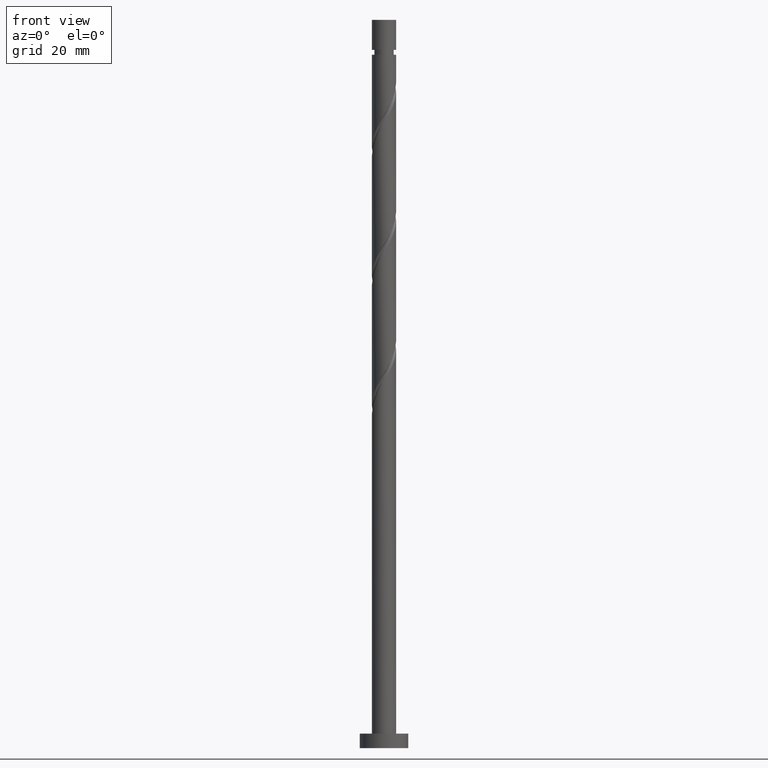
[diagram: clean part render]
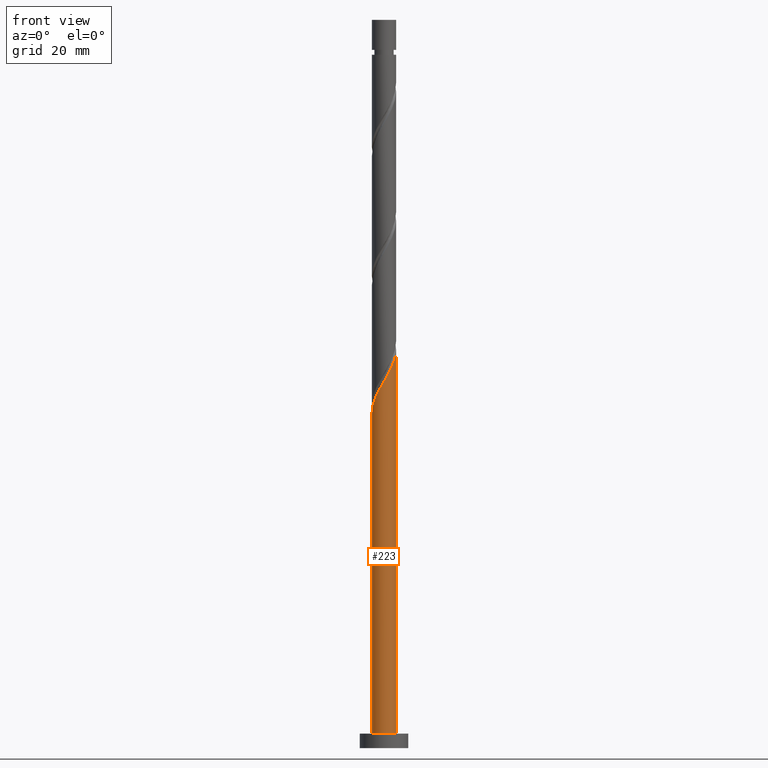
[diagram: same view with one face highlighted and labeled with its STEP entity id]
A machine part, front view. The second image highlights one B-rep face of the part: STEP entity #223.
In plain terms, the highlighted cylindrical surface (edge-blend (fillet) strip) has radius 2.5 mm, axis along (-0, -0, -1).
Its self-contained STEP definition (entity closure, byte-faithful):
#40 = CARTESIAN_POINT ( 'NONE',  ( 1.743088351060510188, -1.792105744758709429, 79.04957667147141365 ) ) ;
#59 = CARTESIAN_POINT ( 'NONE',  ( 2.000754257700509076, -1.541487475360719062, 79.65563727753202272 ) ) ;
#80 = VECTOR ( 'NONE', #1363, 1000.000000000000000 ) ;
#132 = CARTESIAN_POINT ( 'NONE',  ( 2.500000000000000000, 3.061616997868383141E-16, 150.5000000000000000 ) ) ;
#137 = CARTESIAN_POINT ( 'NONE',  ( -2.500000000000003109, -9.280707246519474483E-15, 69.10921310126143169 ) ) ;
#158 = ORIENTED_EDGE ( 'NONE', *, *, #1453, .F. ) ;
#167 = AXIS2_PLACEMENT_3D ( 'NONE', #184, #913, #651 ) ;
#184 = CARTESIAN_POINT ( 'NONE',  ( 0.000000000000000000, 0.000000000000000000, 3.000000000000000000 ) ) ;
#223 = ADVANCED_FACE ( 'NONE', ( #1399 ), #1410, .T. ) ;
#243 = CARTESIAN_POINT ( 'NONE',  ( -2.495863270706177417, -0.1437585960555965436, 69.35260697450169687 ) ) ;
#280 = DIRECTION ( 'NONE',  ( -1.000000000000000000, 0.000000000000000000, 0.000000000000000000 ) ) ;
#286 = CARTESIAN_POINT ( 'NONE',  ( 1.485422444420512189, -2.042724014156700907, 78.44351606541081878 ) ) ;
#306 = CARTESIAN_POINT ( 'NONE',  ( 2.500000000000004441, -0.2863223184628053697, 81.95658648162346083 ) ) ;
#316 = CARTESIAN_POINT ( 'NONE',  ( -1.810534374112179323, -1.761012923450277601, 72.38291000480472803 ) ) ;
#353 = EDGE_CURVE ( 'NONE', #984, #918, #710, .T. ) ;
#407 = CARTESIAN_POINT ( 'NONE',  ( -2.500000000000003553, -9.280707246519474483E-15, 69.10921310126143169 ) ) ;
#449 = CARTESIAN_POINT ( 'NONE',  ( 2.500000000000003109, 2.191174233062213370E-15, 82.44254643459476029 ) ) ;
#518 = CARTESIAN_POINT ( 'NONE',  ( -2.500000000000003553, -0.07193881630955888118, 69.23131110597965687 ) ) ;
#534 = VECTOR ( 'NONE', #1533, 1000.000000000000000 ) ;
#548 = CARTESIAN_POINT ( 'NONE',  ( -0.2129030368922531502, -2.490917962696097110, 75.41321303510777341 ) ) ;
#574 = CARTESIAN_POINT ( 'NONE',  ( 2.353996859965343358, -0.9153687888900183811, 80.86775848965324087 ) ) ;
#613 = EDGE_LOOP ( 'NONE', ( #158, #685, #855, #1115 ) ) ;
#631 = VERTEX_POINT ( 'NONE', #1570 ) ;
#647 = CARTESIAN_POINT ( 'NONE',  ( -2.475193905018191920, -0.5026095591624449854, 69.95866758056232015 ) ) ;
#651 = DIRECTION ( 'NONE',  ( 1.000000000000000000, 0.000000000000000000, 0.000000000000000000 ) ) ;
#662 = EDGE_CURVE ( 'NONE', #984, #1238, #1077, .T. ) ;
#685 = ORIENTED_EDGE ( 'NONE', *, *, #662, .F. ) ;
#700 = CARTESIAN_POINT ( 'NONE',  ( 0.1452368982656260799, -2.521528798126814408, 76.01927364116839669 ) ) ;
#710 = LINE ( 'NONE', #1355, #80 ) ;
#750 = CARTESIAN_POINT ( 'NONE',  ( -2.354261794510398964, -0.8411013035946942606, 70.56472818662288660 ) ) ;
#829 = CARTESIAN_POINT ( 'NONE',  ( 2.177375558832926217, -1.228428132125369387, 80.26169788359258916 ) ) ;
#855 = ORIENTED_EDGE ( 'NONE', *, *, #353, .T. ) ;
#884 = CIRCLE ( 'NONE', #167, 2.500000000000000000 ) ;
#913 = DIRECTION ( 'NONE',  ( 0.000000000000000000, 0.000000000000000000, 1.000000000000000000 ) ) ;
#918 = VERTEX_POINT ( 'NONE', #1573 ) ;
#920 = CARTESIAN_POINT ( 'NONE',  ( 0.000000000000000000, 0.000000000000000000, 150.5000000000000000 ) ) ;
#984 = VERTEX_POINT ( 'NONE', #407 ) ;
#1038 = CARTESIAN_POINT ( 'NONE',  ( -2.233329684002606452, -1.179593048026944313, 71.17078879268352409 ) ) ;
#1068 = CARTESIAN_POINT ( 'NONE',  ( 2.500000000000003109, 2.191174233062213370E-15, 82.44254643459476029 ) ) ;
#1076 = CARTESIAN_POINT ( 'NONE',  ( 0.4974937185533109263, -2.450000000000003286, 76.62533424722896314 ) ) ;
#1077 =( BOUNDED_CURVE ( )  B_SPLINE_CURVE ( 2, ( #137, #518, #243, #647, #750, #1038, #1657, #316, #1304, #1215, #1323, #1458, #548, #700, #1076, #1084, #1595, #286, #40, #59, #829, #574, #1601, #306, #1068 ),
 .UNSPECIFIED., .F., .T. ) 
 B_SPLINE_CURVE_WITH_KNOTS ( ( 3, 2, 2, 2, 2, 2, 2, 2, 2, 2, 2, 2, 3 ),
 ( 0.05452521624175137027, 0.05681818181818176772, 0.06818181818181823228, 0.07954545454545458583, 0.09090909090909093937, 0.1022727272727272929, 0.1136363636363636465, 0.1250000000000000000, 0.1363636363636363535, 0.1477272727272727071, 0.1590909090909090606, 0.1704545454545454142, 0.1795252162417513564 ),
 .UNSPECIFIED. ) 
 CURVE ( )  GEOMETRIC_REPRESENTATION_ITEM ( )  RATIONAL_B_SPLINE_CURVE ( ( 0.9061101570135650096, 0.9072237824201472289, 0.9090909090909247148, 0.8998376744372269531, 0.9090909090909247148, 0.8998376744372269531, 0.9090909090909247148, 0.8998376744372269531, 0.9090909090909247148, 0.8998376744372269531, 0.9090909090909247148, 0.8998376744372269531, 0.9090909090909247148, 0.8998376744372269531, 0.9090909090909247148, 0.8998376744372269531, 0.9090909090909247148, 0.8998376744372269531, 0.9090909090909247148, 0.8998376744372269531, 0.9090909090909247148, 0.8998376744372269531, 0.9090909090909247148, 0.9017048011080043279, 0.9061101570135650096 ) ) 
 REPRESENTATION_ITEM ( '' )  );
#1084 = CARTESIAN_POINT ( 'NONE',  ( 0.8497505388409963833, -2.378471201873193941, 77.23139485328958642 ) ) ;
#1115 = ORIENTED_EDGE ( 'NONE', *, *, #1593, .T. ) ;
#1215 = CARTESIAN_POINT ( 'NONE',  ( -1.241060336893711424, -2.199766004962788735, 73.59503121692596039 ) ) ;
#1238 = VERTEX_POINT ( 'NONE', #449 ) ;
#1304 = CARTESIAN_POINT ( 'NONE',  ( -1.525797355502945152, -1.980389464206532946, 72.98897061086536553 ) ) ;
#1323 = CARTESIAN_POINT ( 'NONE',  ( -0.9060516544719220411, -2.330036566114083829, 74.20109182298654105 ) ) ;
#1350 = AXIS2_PLACEMENT_3D ( 'NONE', #920, #1552, #280 ) ;
#1355 = CARTESIAN_POINT ( 'NONE',  ( -2.500000000000000000, 0.000000000000000000, 150.5000000000000000 ) ) ;
#1363 = DIRECTION ( 'NONE',  ( -0.000000000000000000, -0.000000000000000000, -1.000000000000000000 ) ) ;
#1399 = FACE_OUTER_BOUND ( 'NONE', #613, .T. ) ;
#1410 = CYLINDRICAL_SURFACE ( 'NONE', #1350, 2.500000000000000000 ) ;
#1453 = EDGE_CURVE ( 'NONE', #1238, #631, #1510, .T. ) ;
#1458 = CARTESIAN_POINT ( 'NONE',  ( -0.5710429720501326578, -2.460307127265380256, 74.80715242904719275 ) ) ;
#1510 = LINE ( 'NONE', #132, #534 ) ;
#1533 = DIRECTION ( 'NONE',  ( -0.000000000000000000, -0.000000000000000000, -1.000000000000000000 ) ) ;
#1552 = DIRECTION ( 'NONE',  ( -0.000000000000000000, -0.000000000000000000, -1.000000000000000000 ) ) ;
#1570 = CARTESIAN_POINT ( 'NONE',  ( 2.500000000000000000, 3.061616997868383141E-16, 3.000000000000000000 ) ) ;
#1573 = CARTESIAN_POINT ( 'NONE',  ( -2.500000000000000000, 0.000000000000000000, 3.000000000000000000 ) ) ;
#1593 = EDGE_CURVE ( 'NONE', #918, #631, #884, .T. ) ;
#1595 = CARTESIAN_POINT ( 'NONE',  ( 1.167586491630753454, -2.210597608014947202, 77.83745545935018129 ) ) ;
#1601 = CARTESIAN_POINT ( 'NONE',  ( 2.435264748179753358, -0.5652305779706354727, 81.47381909571382153 ) ) ;
#1657 = CARTESIAN_POINT ( 'NONE',  ( -2.021932029057392555, -1.470302985738610735, 71.77684939874411896 ) ) ;